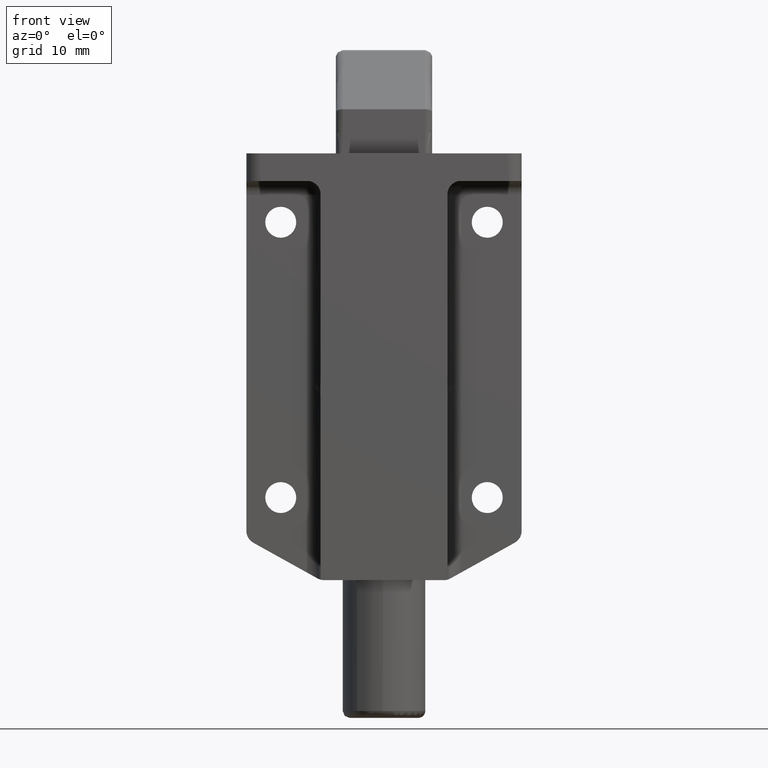
[diagram: clean part render]
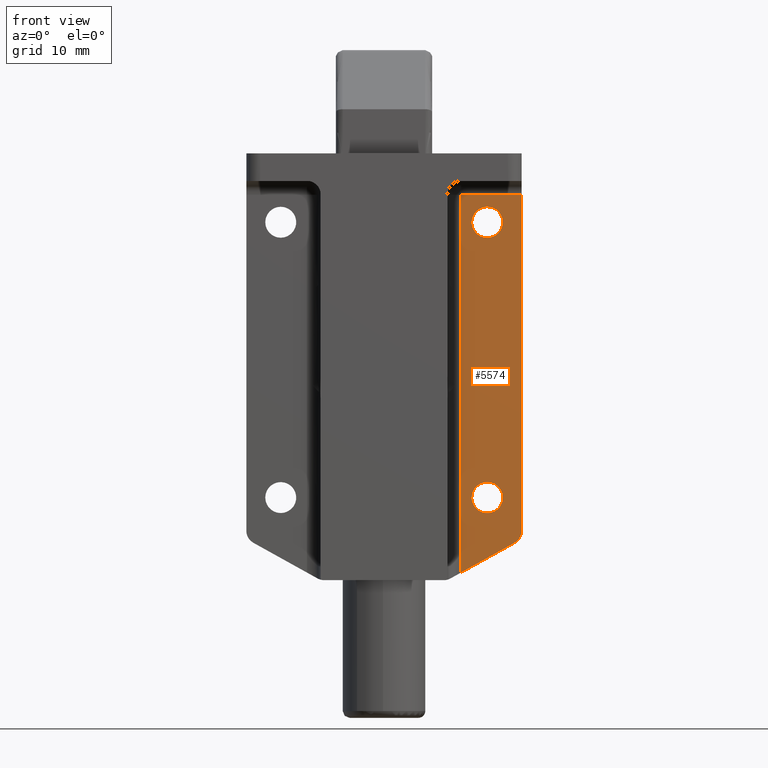
[diagram: same view with one face highlighted and labeled with its STEP entity id]
A machine part, front view. The second image highlights one B-rep face of the part: STEP entity #5574.
In plain terms, the highlighted face is a freeform B-spline surface patch.
Its self-contained STEP definition (entity closure, byte-faithful):
#3110=CARTESIAN_POINT('',(-17.234271876668672,3.999999999999892,-9.734426693522472));
#3111=VERTEX_POINT('',#3110);
#3112=CARTESIAN_POINT('',(-15.0,4.0,-12.250000000000000));
#3113=VERTEX_POINT('',#3112);
#3114=CARTESIAN_POINT('',(-17.234271876668668,3.999999999999892,-9.734426693522472));
#3115=CARTESIAN_POINT('',(-17.249999999999996,4.0,-9.866747611204440));
#3116=CARTESIAN_POINT('',(-17.250000000000000,4.0,-10.0));
#3117=CARTESIAN_POINT('',(-17.249999999999996,4.0,-12.249999999999996));
#3118=CARTESIAN_POINT('',(-15.0,4.0,-12.250000000000000));
#3126=(BOUNDED_CURVE()B_SPLINE_CURVE(2,(#3114,#3115,#3116,#3117,#3118),.UNSPECIFIED.,.F.,.U.)B_SPLINE_CURVE_WITH_KNOTS((3,2,3),(0.729562755014872,0.750000000000000,1.0),.UNSPECIFIED.)CURVE()GEOMETRIC_REPRESENTATION_ITEM()RATIONAL_B_SPLINE_CURVE((0.956027305938634,0.976056278130507,1.0,0.707106781186547,1.0))REPRESENTATION_ITEM(''));
#3127=EDGE_CURVE('',#3111,#3113,#3126,.T.);
#3168=CARTESIAN_POINT('',(-12.754196703574260,4.0,-10.137359214336939));
#3169=VERTEX_POINT('',#3168);
#3175=CARTESIAN_POINT('',(-15.0,4.0,-12.250000000000000));
#3176=CARTESIAN_POINT('',(-12.883411350186428,4.0,-12.249999999999998));
#3177=CARTESIAN_POINT('',(-12.754196703574253,4.0,-10.137359214336936));
#3185=(BOUNDED_CURVE()B_SPLINE_CURVE(2,(#3175,#3176,#3177),.UNSPECIFIED.,.F.,.U.)B_SPLINE_CURVE_WITH_KNOTS((3,3),(0.0,0.239332962183038),.UNSPECIFIED.)CURVE()GEOMETRIC_REPRESENTATION_ITEM()RATIONAL_B_SPLINE_CURVE((1.0,0.719603993352207,0.976072041546902))REPRESENTATION_ITEM(''));
#3186=EDGE_CURVE('',#3113,#3169,#3185,.T.);
#3213=CARTESIAN_POINT('',(-15.0,4.0,-7.750000000000000));
#3214=VERTEX_POINT('',#3213);
#3215=CARTESIAN_POINT('',(-15.0,4.0,-7.750000000000000));
#3216=CARTESIAN_POINT('',(-16.998396035434979,4.000000000000001,-7.749999999999999));
#3217=CARTESIAN_POINT('',(-17.234271876668668,3.999999999999892,-9.734426693522472));
#3225=(BOUNDED_CURVE()B_SPLINE_CURVE(2,(#3215,#3216,#3217),.UNSPECIFIED.,.F.,.U.)B_SPLINE_CURVE_WITH_KNOTS((3,3),(0.500000000000000,0.729562755014872),.UNSPECIFIED.)CURVE()GEOMETRIC_REPRESENTATION_ITEM()RATIONAL_B_SPLINE_CURVE((1.0,0.731050503056041,0.956027305938634))REPRESENTATION_ITEM(''));
#3226=EDGE_CURVE('',#3214,#3111,#3225,.T.);
#3228=CARTESIAN_POINT('',(-12.754196703574252,4.000000000000001,-10.137359214336936));
#3229=CARTESIAN_POINT('',(-12.750000000000000,4.000000000000000,-10.068743717806409));
#3230=CARTESIAN_POINT('',(-12.750000000000000,4.0,-10.0));
#3231=CARTESIAN_POINT('',(-12.750000000000002,4.0,-7.750000000000001));
#3232=CARTESIAN_POINT('',(-15.0,4.0,-7.750000000000000));
#3240=(BOUNDED_CURVE()B_SPLINE_CURVE(2,(#3228,#3229,#3230,#3231,#3232),.UNSPECIFIED.,.F.,.U.)B_SPLINE_CURVE_WITH_KNOTS((3,2,3),(0.239332962183038,0.250000000000000,0.500000000000000),.UNSPECIFIED.)CURVE()GEOMETRIC_REPRESENTATION_ITEM()RATIONAL_B_SPLINE_CURVE((0.976072041546902,0.987502787834340,1.0,0.707106781186547,1.0))REPRESENTATION_ITEM(''));
#3241=EDGE_CURVE('',#3169,#3214,#3240,.T.);
#3300=CARTESIAN_POINT('',(-17.234271876668672,3.999999999999892,-49.734426693522472));
#3301=VERTEX_POINT('',#3300);
#3302=CARTESIAN_POINT('',(-15.0,4.0,-52.250000000000007));
#3303=VERTEX_POINT('',#3302);
#3304=CARTESIAN_POINT('',(-17.234271876668672,3.999999999999892,-49.734426693522479));
#3305=CARTESIAN_POINT('',(-17.249999999999996,4.000000000000000,-49.866747611204431));
#3306=CARTESIAN_POINT('',(-17.250000000000000,4.0,-50.0));
#3307=CARTESIAN_POINT('',(-17.249999999999996,4.0,-52.250000000000007));
#3308=CARTESIAN_POINT('',(-15.0,4.0,-52.250000000000007));
#3316=(BOUNDED_CURVE()B_SPLINE_CURVE(2,(#3304,#3305,#3306,#3307,#3308),.UNSPECIFIED.,.F.,.U.)B_SPLINE_CURVE_WITH_KNOTS((3,2,3),(0.729562755014871,0.750000000000000,1.0),.UNSPECIFIED.)CURVE()GEOMETRIC_REPRESENTATION_ITEM()RATIONAL_B_SPLINE_CURVE((0.956027305938634,0.976056278130506,1.0,0.707106781186547,1.0))REPRESENTATION_ITEM(''));
#3317=EDGE_CURVE('',#3301,#3303,#3316,.T.);
#3358=CARTESIAN_POINT('',(-12.754196703574260,4.0,-50.137359214336939));
#3359=VERTEX_POINT('',#3358);
#3365=CARTESIAN_POINT('',(-15.0,4.0,-52.250000000000007));
#3366=CARTESIAN_POINT('',(-12.883411350186426,4.000000000000001,-52.250000000000000));
#3367=CARTESIAN_POINT('',(-12.754196703574257,4.0,-50.137359214336939));
#3375=(BOUNDED_CURVE()B_SPLINE_CURVE(2,(#3365,#3366,#3367),.UNSPECIFIED.,.F.,.U.)B_SPLINE_CURVE_WITH_KNOTS((3,3),(0.0,0.239332962183038),.UNSPECIFIED.)CURVE()GEOMETRIC_REPRESENTATION_ITEM()RATIONAL_B_SPLINE_CURVE((1.0,0.719603993352207,0.976072041546902))REPRESENTATION_ITEM(''));
#3376=EDGE_CURVE('',#3303,#3359,#3375,.T.);
#3403=CARTESIAN_POINT('',(-15.0,4.0,-47.750000000000000));
#3404=VERTEX_POINT('',#3403);
#3405=CARTESIAN_POINT('',(-15.0,4.0,-47.750000000000000));
#3406=CARTESIAN_POINT('',(-16.998396035434979,4.0,-47.750000000000000));
#3407=CARTESIAN_POINT('',(-17.234271876668668,3.999999999999892,-49.734426693522479));
#3415=(BOUNDED_CURVE()B_SPLINE_CURVE(2,(#3405,#3406,#3407),.UNSPECIFIED.,.F.,.U.)B_SPLINE_CURVE_WITH_KNOTS((3,3),(0.500000000000000,0.729562755014872),.UNSPECIFIED.)CURVE()GEOMETRIC_REPRESENTATION_ITEM()RATIONAL_B_SPLINE_CURVE((1.0,0.731050503056040,0.956027305938635))REPRESENTATION_ITEM(''));
#3416=EDGE_CURVE('',#3404,#3301,#3415,.T.);
#3418=CARTESIAN_POINT('',(-12.754196703574257,4.0,-50.137359214336939));
#3419=CARTESIAN_POINT('',(-12.750000000000004,4.000000000000000,-50.068743717806406));
#3420=CARTESIAN_POINT('',(-12.750000000000000,4.0,-50.0));
#3421=CARTESIAN_POINT('',(-12.750000000000002,4.0,-47.750000000000000));
#3422=CARTESIAN_POINT('',(-15.0,4.0,-47.750000000000000));
#3430=(BOUNDED_CURVE()B_SPLINE_CURVE(2,(#3418,#3419,#3420,#3421,#3422),.UNSPECIFIED.,.F.,.U.)B_SPLINE_CURVE_WITH_KNOTS((3,2,3),(0.239332962183037,0.250000000000000,0.500000000000000),.UNSPECIFIED.)CURVE()GEOMETRIC_REPRESENTATION_ITEM()RATIONAL_B_SPLINE_CURVE((0.976072041546902,0.987502787834340,1.0,0.707106781186547,1.0))REPRESENTATION_ITEM(''));
#3431=EDGE_CURVE('',#3359,#3404,#3430,.T.);
#5073=CARTESIAN_POINT('',(-11.199999999999999,4.0,-6.0));
#5074=VERTEX_POINT('',#5073);
#5348=CARTESIAN_POINT('',(-20.0,4.0,-6.0));
#5349=VERTEX_POINT('',#5348);
#5350=CARTESIAN_POINT('',(-20.0,4.0,-6.0));
#5351=CARTESIAN_POINT('',(-11.199999999999999,4.0,-6.0));
#5352=QUASI_UNIFORM_CURVE('',1,(#5350,#5351),.UNSPECIFIED.,.F.,.U.);
#5353=EDGE_CURVE('',#5349,#5074,#5352,.T.);
#5520=CARTESIAN_POINT('',(-20.439559982943891,4.0,-3.258265874080526));
#5521=CARTESIAN_POINT('',(-20.439559982943891,4.0,-63.631309818515383));
#5522=CARTESIAN_POINT('',(-10.760439781021720,4.0,-3.258265874080526));
#5523=CARTESIAN_POINT('',(-10.760439781021720,4.0,-63.631309818515383));
#5524=B_SPLINE_SURFACE_WITH_KNOTS('',1,1,((#5520,#5522),(#5521,#5523)),.UNSPECIFIED.,.F.,.F.,.U.,(2,2),(2,2),(0.0,60.373043944434848),(0.0,9.679120201922176),.UNSPECIFIED.);
#5525=CARTESIAN_POINT('',(-20.0,4.0,-54.823999999999998));
#5526=VERTEX_POINT('',#5525);
#5527=CARTESIAN_POINT('',(-20.0,4.0,-6.0));
#5528=CARTESIAN_POINT('',(-20.0,4.0,-54.823999999999998));
#5529=QUASI_UNIFORM_CURVE('',1,(#5527,#5528),.UNSPECIFIED.,.F.,.U.);
#5530=EDGE_CURVE('',#5349,#5526,#5529,.T.);
#5531=ORIENTED_EDGE('',*,*,#5530,.F.);
#5532=ORIENTED_EDGE('',*,*,#5353,.T.);
#5533=CARTESIAN_POINT('',(-11.199999999999999,4.0,-60.889574220342787));
#5534=VERTEX_POINT('',#5533);
#5535=CARTESIAN_POINT('',(-11.199999999999999,4.0,-6.0));
#5536=CARTESIAN_POINT('',(-11.199999999999999,4.0,-60.889574220342787));
#5537=QUASI_UNIFORM_CURVE('',1,(#5535,#5536),.UNSPECIFIED.,.F.,.U.);
#5538=EDGE_CURVE('',#5074,#5534,#5537,.T.);
#5539=ORIENTED_EDGE('',*,*,#5538,.T.);
#5540=CARTESIAN_POINT('',(-18.942562305599250,4.0,-56.587966071120213));
#5541=VERTEX_POINT('',#5540);
#5542=CARTESIAN_POINT('',(-11.199999999999999,4.0,-60.889574220342787));
#5543=CARTESIAN_POINT('',(-18.942562305599250,4.0,-56.587966071120213));
#5544=QUASI_UNIFORM_CURVE('',1,(#5542,#5543),.UNSPECIFIED.,.F.,.U.);
#5545=EDGE_CURVE('',#5534,#5541,#5544,.T.);
#5546=ORIENTED_EDGE('',*,*,#5545,.T.);
#5547=CARTESIAN_POINT('',(-18.942562305599271,4.0,-56.587966071120242));
#5548=CARTESIAN_POINT('',(-19.999999999999993,4.000000000000000,-56.022932010896540));
#5549=CARTESIAN_POINT('',(-20.0,4.0,-54.823999999999998));
#5557=(BOUNDED_CURVE()B_SPLINE_CURVE(2,(#5547,#5548,#5549),.UNSPECIFIED.,.F.,.U.)CURVE()GEOMETRIC_REPRESENTATION_ITEM()QUASI_UNIFORM_CURVE()RATIONAL_B_SPLINE_CURVE((1.0,0.857694920353279,1.0))REPRESENTATION_ITEM(''));
#5558=EDGE_CURVE('',#5541,#5526,#5557,.T.);
#5559=ORIENTED_EDGE('',*,*,#5558,.T.);
#5560=EDGE_LOOP('',(#5531,#5532,#5539,#5546,#5559));
#5561=FACE_OUTER_BOUND('',#5560,.T.);
#5562=ORIENTED_EDGE('',*,*,#3376,.T.);
#5563=ORIENTED_EDGE('',*,*,#3431,.T.);
#5564=ORIENTED_EDGE('',*,*,#3416,.T.);
#5565=ORIENTED_EDGE('',*,*,#3317,.T.);
#5566=EDGE_LOOP('',(#5562,#5563,#5564,#5565));
#5567=FACE_BOUND('',#5566,.T.);
#5568=ORIENTED_EDGE('',*,*,#3186,.T.);
#5569=ORIENTED_EDGE('',*,*,#3241,.T.);
#5570=ORIENTED_EDGE('',*,*,#3226,.T.);
#5571=ORIENTED_EDGE('',*,*,#3127,.T.);
#5572=EDGE_LOOP('',(#5568,#5569,#5570,#5571));
#5573=FACE_BOUND('',#5572,.T.);
#5574=ADVANCED_FACE('',(#5561,#5567,#5573),#5524,.F.);